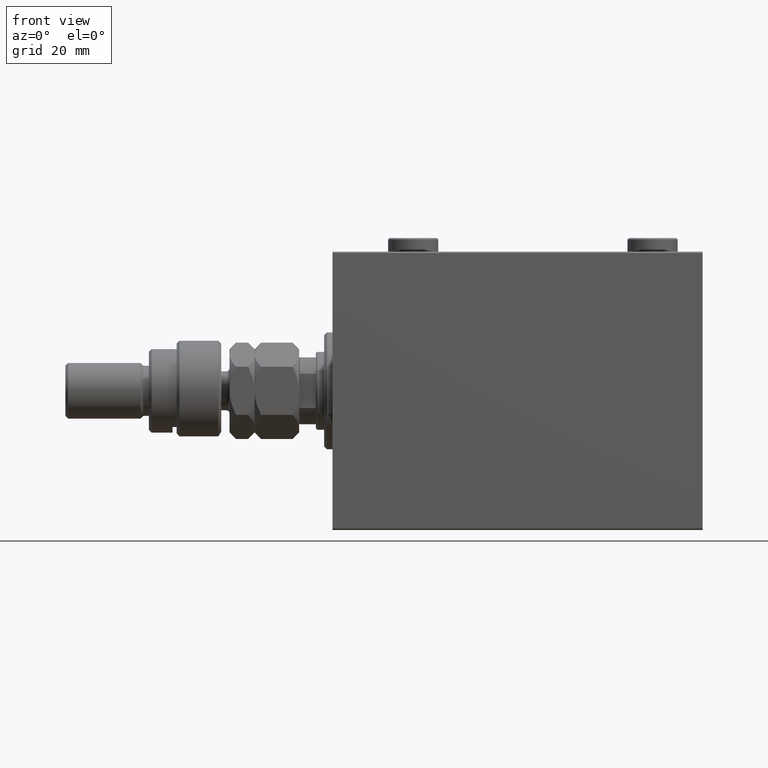
[diagram: clean part render]
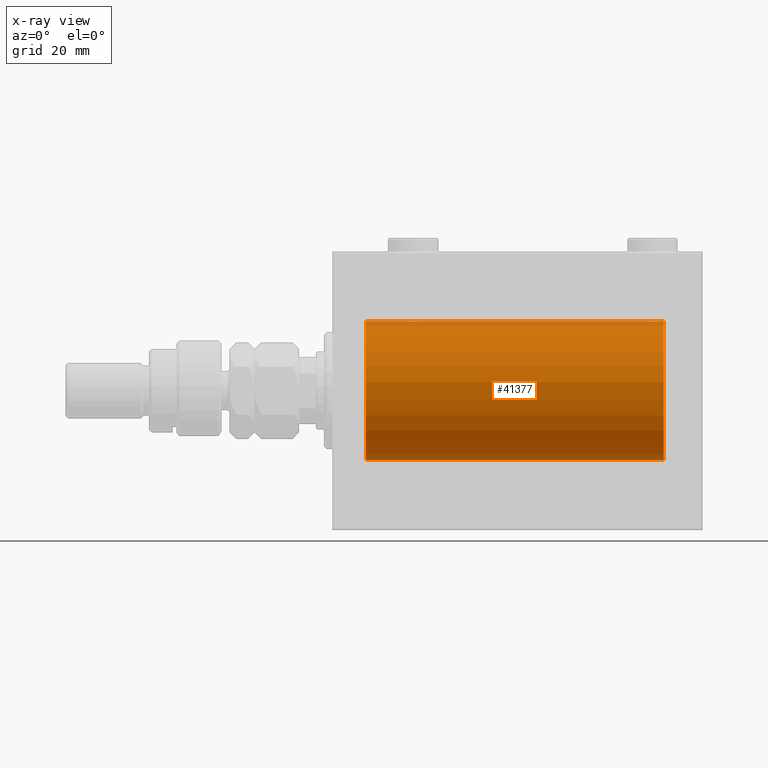
[diagram: x-ray — body ghosted, one internal face saturated and labeled with its STEP entity id]
A machine part, front view, then the same camera in x-ray: the body is ghosted and one INTERNAL B-rep face — a face not visible from any outside direction — is saturated and labeled: STEP entity #41377.
In plain terms, the highlighted cylindrical surface (partial cylindrical patch) has radius 25 mm, axis along (-1, -0, -0).
Its self-contained STEP definition (entity closure, byte-faithful):
#267 = EDGE_CURVE ( 'NONE', #23548, #13593, #1862, .T. ) ;
#268 = ORIENTED_EDGE ( 'NONE', *, *, #24972, .F. ) ;
#772 = CARTESIAN_POINT ( 'NONE',  ( 27.89276154161590426, -2.247417070759891278, -24.89885693081946272 ) ) ;
#1101 = ORIENTED_EDGE ( 'NONE', *, *, #267, .F. ) ;
#1598 = CARTESIAN_POINT ( 'NONE',  ( 112.6278403059139350, -0.8058335233485532934, 24.98746277938383287 ) ) ;
#1758 = AXIS2_PLACEMENT_3D ( 'NONE', #23993, #20828, #43212 ) ;
#1839 = CARTESIAN_POINT ( 'NONE',  ( 116.5225677434019218, -1.989585286700258138, 24.92087098724766747 ) ) ;
#1853 = CARTESIAN_POINT ( 'NONE',  ( 115.1670649517806169, -2.499872792855092563, -24.87469871246082320 ) ) ;
#1862 = LINE ( 'NONE', #2335, #41734 ) ;
#2069 = CARTESIAN_POINT ( 'NONE',  ( 117.1682764149395695, -1.255214705003179221, 24.96884293994577675 ) ) ;
#2335 = CARTESIAN_POINT ( 'NONE',  ( 119.0000000000000000, 0.000000000000000000, 25.00000000000000000 ) ) ;
#2677 = VECTOR ( 'NONE', #23693, 1000.000000000000000 ) ;
#3531 = CARTESIAN_POINT ( 'NONE',  ( 113.3487886644089286, -1.884161199660627339, -24.92916496727982789 ) ) ;
#4591 = CARTESIAN_POINT ( 'NONE',  ( 27.47463817756919369, -1.987446652080264720, 24.92104239223420592 ) ) ;
#4778 = CARTESIAN_POINT ( 'NONE',  ( 114.1921165759419523, -2.371528299825759856, 24.88734287464370709 ) ) ;
#4834 = CARTESIAN_POINT ( 'NONE',  ( 26.50000000000000355, -1.940558383798427991E-23, 25.00000000000000000 ) ) ;
#4863 = ORIENTED_EDGE ( 'NONE', *, *, #32525, .T. ) ;
#5013 = CARTESIAN_POINT ( 'NONE',  ( 113.1158761721352732, -1.651251241585110163, 24.94567559498348430 ) ) ;
#5067 = CARTESIAN_POINT ( 'NONE',  ( 31.49999999999998579, -0.3305063766663721148, 25.00000000000000000 ) ) ;
#5503 = CARTESIAN_POINT ( 'NONE',  ( 115.6490439016909590, -2.419770561643918683, -24.88263927071750814 ) ) ;
#5729 = CARTESIAN_POINT ( 'NONE',  ( 117.5000000000000284, -0.3305063766663758895, 25.00000000000000355 ) ) ;
#5743 = CARTESIAN_POINT ( 'NONE',  ( 114.1956433908369775, -2.372734907014183214, -24.88722742718433523 ) ) ;
#6026 = VERTEX_POINT ( 'NONE', #48058 ) ;
#6333 = B_SPLINE_CURVE_WITH_KNOTS ( 'NONE', 3,
 ( #9020, #27298, #12470, #19286, #8790, #26584, #42378, #16351, #38487, #15403, #38248, #30220, #34359, #16111, #12222, #41431, #19523, #34837, #30459, #45091, #15879, #772, #42140, #19994, #11748, #34126, #34597, #8074, #26815, #45335, #46061, #15642 ),
 .UNSPECIFIED., .F., .F.,
 ( 4, 2, 2, 2, 2, 2, 2, 2, 2, 2, 2, 2, 2, 2, 2, 4 ),
 ( 0.007821024441662299820, 0.008309723826317909692, 0.008798423210973517830, 0.009287122595629124233, 0.009775821980284728902, 0.01026452136494033357, 0.01075322074959593997, 0.01124192013425154464, 0.01173061951890715104, 0.01221931890356275571, 0.01270801828821836038, 0.01319671767287396852, 0.01368541705752957319, 0.01417411644218517959, 0.01466281582684078426, 0.01564021459615199533 ),
 .UNSPECIFIED. ) ;
#6695 = CARTESIAN_POINT ( 'NONE',  ( 117.5000000000000142, 2.971051067387116602E-15, 25.00000000000000000 ) ) ;
#7073 = ORIENTED_EDGE ( 'NONE', *, *, #26662, .T. ) ;
#7428 = CARTESIAN_POINT ( 'NONE',  ( 112.5665064476025350, -0.6588655613946003964, -24.99312727339970053 ) ) ;
#7546 = DIRECTION ( 'NONE',  ( -1.000000000000000000, -0.000000000000000000, -0.000000000000000000 ) ) ;
#8007 = CARTESIAN_POINT ( 'NONE',  ( 30.52256774340189693, -1.989585286700245037, 24.92087098724766747 ) ) ;
#8074 = CARTESIAN_POINT ( 'NONE',  ( 26.83172358506042698, -1.255214705003176112, -24.96884293994577320 ) ) ;
#8240 = CARTESIAN_POINT ( 'NONE',  ( 27.11587617213528745, -1.651251241585102836, 24.94567559498349141 ) ) ;
#8485 = CARTESIAN_POINT ( 'NONE',  ( 28.35095609830903740, -2.419770561643910689, 24.88263927071751169 ) ) ;
#8670 = CARTESIAN_POINT ( 'NONE',  ( 115.6456066614863403, -2.420689345803769044, 24.88254961038873958 ) ) ;
#8727 = CARTESIAN_POINT ( 'NONE',  ( 31.16827641493957302, -1.255214705003183440, 24.96884293994578385 ) ) ;
#8790 = CARTESIAN_POINT ( 'NONE',  ( 31.37215969408608274, -0.8058335233485438565, -24.98746277938383997 ) ) ;
#9020 = CARTESIAN_POINT ( 'NONE',  ( 31.50000000000000000, 3.061616978460191625E-15, -25.00000000000000000 ) ) ;
#9036 = CARTESIAN_POINT ( 'NONE',  ( 11.99999999999999645, 0.000000000000000000, 0.000000000000000000 ) ) ;
#9142 = CARTESIAN_POINT ( 'NONE',  ( 114.8329350482193831, -2.499872792855093451, 24.87469871246082320 ) ) ;
#9154 = CARTESIAN_POINT ( 'NONE',  ( 116.2538319542450580, -2.169003991399878650, -24.90589728951138326 ) ) ;
#9230 = EDGE_CURVE ( 'NONE', #43730, #46323, #26482, .T. ) ;
#9391 = CARTESIAN_POINT ( 'NONE',  ( 116.9853803371709517, -1.528152964861310803, 24.95362559291378091 ) ) ;
#9404 = CARTESIAN_POINT ( 'NONE',  ( 117.2476025101955628, -1.106703319666888508, -24.97594585958024282 ) ) ;
#9556 = CARTESIAN_POINT ( 'NONE',  ( 26.50000000000000355, -1.940558383798427991E-23, 25.00000000000000000 ) ) ;
#9645 = CARTESIAN_POINT ( 'NONE',  ( 117.5000000000000142, 3.061616978466108082E-15, -25.00000000000000000 ) ) ;
#10459 = DIRECTION ( 'NONE',  ( -1.000000000000000000, -0.000000000000000000, -0.000000000000000000 ) ) ;
#10747 = EDGE_CURVE ( 'NONE', #46323, #16269, #25098, .T. ) ;
#10883 = B_SPLINE_CURVE_WITH_KNOTS ( 'NONE', 3,
 ( #4834, #15814, #37940, #34296, #45025, #30634, #30874, #26518, #8240, #20178, #4591, #35016, #27472, #15335, #8485, #38663, #37700, #12158, #26987, #41836, #23335, #45744, #27233, #8007, #38424, #11919, #41599, #8727, #42077, #23576, #5067, #19932 ),
 .UNSPECIFIED., .F., .F.,
 ( 4, 2, 2, 2, 2, 2, 2, 2, 2, 2, 2, 2, 2, 2, 2, 4 ),
 ( 0.007821024441662275534, 0.008309723826317880202, 0.008798423210973486605, 0.009287122595629093008, 0.009775821980284697676, 0.01026452136494030234, 0.01075322074959590875, 0.01124192013425151515, 0.01173061951890711982, 0.01221931890356272449, 0.01270801828821833089, 0.01319671767287393729, 0.01368541705752954196, 0.01417411644218514663, 0.01466281582684075303, 0.01564021459615196410 ),
 .UNSPECIFIED. ) ;
#11415 = VERTEX_POINT ( 'NONE', #21517 ) ;
#11748 = CARTESIAN_POINT ( 'NONE',  ( 27.34878866440888601, -1.884161199660611796, -24.92916496727982434 ) ) ;
#11862 = ORIENTED_EDGE ( 'NONE', *, *, #9230, .T. ) ;
#11919 = CARTESIAN_POINT ( 'NONE',  ( 30.88185954148645962, -1.653834020452937814, 24.94550385189585029 ) ) ;
#12158 = CARTESIAN_POINT ( 'NONE',  ( 29.16323589638543723, -2.500125740978195843, 24.87467329022545570 ) ) ;
#12222 = CARTESIAN_POINT ( 'NONE',  ( 29.64904390169096970, -2.419770561643902695, -24.88263927071750459 ) ) ;
#12320 = VECTOR ( 'NONE', #43497, 1000.000000000000000 ) ;
#12470 = CARTESIAN_POINT ( 'NONE',  ( 31.48417840057656747, -0.3254210271412188993, -24.99840249400844883 ) ) ;
#12502 = EDGE_LOOP ( 'NONE', ( #21111, #19692, #11862, #37748, #36305, #7073, #27804, #268, #4863, #18102, #39089, #1101 ) ) ;
#12834 = CARTESIAN_POINT ( 'NONE',  ( 116.9874981583439393, -1.525407911884375300, -24.95379469572361586 ) ) ;
#12910 = CARTESIAN_POINT ( 'NONE',  ( 119.0000000000000000, 3.061616997868383043E-15, -25.00000000000000000 ) ) ;
#13060 = CARTESIAN_POINT ( 'NONE',  ( 116.6512113355911424, -1.884161199660627561, 24.92916496727982789 ) ) ;
#13073 = CARTESIAN_POINT ( 'NONE',  ( 117.1701129028092652, -1.252049606094348011, -24.96900299967627745 ) ) ;
#13540 = FACE_OUTER_BOUND ( 'NONE', #12502, .T. ) ;
#13593 = VERTEX_POINT ( 'NONE', #24775 ) ;
#13775 = DIRECTION ( 'NONE',  ( -1.000000000000000000, -0.000000000000000000, -0.000000000000000000 ) ) ;
#13831 = EDGE_CURVE ( 'NONE', #6026, #13593, #14151, .T. ) ;
#14151 = B_SPLINE_CURVE_WITH_KNOTS ( 'NONE', 3,
 ( #31064, #16708, #34958, #16471, #1598, #30821, #45692, #31533, #5013, #34714, #42489, #38131, #46176, #4778, #35432, #16943, #9142, #42028, #23996, #8670, #38853, #45940, #35201, #1839, #13060, #27888, #9391, #2069, #24240, #39095, #5729, #6695 ),
 .UNSPECIFIED., .F., .F.,
 ( 4, 2, 2, 2, 2, 2, 2, 2, 2, 2, 2, 2, 2, 2, 2, 4 ),
 ( 0.007821024441662341453, 0.008309723826317951326, 0.008798423210973559463, 0.009287122595629169336, 0.009775821980284777474, 0.01026452136494038735, 0.01075322074959599548, 0.01124192013425160536, 0.01173061951890721349, 0.01221931890356282337, 0.01270801828821843324, 0.01319671767287404138, 0.01368541705752964951, 0.01417411644218525939, 0.01466281582684086926, 0.01564021459615210288 ),
 .UNSPECIFIED. ) ;
#14521 = CARTESIAN_POINT ( 'NONE',  ( 113.1181404585135652, -1.653834020452947362, -24.94550385189584318 ) ) ;
#15335 = CARTESIAN_POINT ( 'NONE',  ( 28.19211657594193809, -2.371528299825749198, 24.88734287464370709 ) ) ;
#15403 = CARTESIAN_POINT ( 'NONE',  ( 30.65383336149337623, -1.881857718844709870, -24.92933960374833191 ) ) ;
#15642 = CARTESIAN_POINT ( 'NONE',  ( 26.50000000000000355, -1.828402720252098442E-15, -25.00000000000000000 ) ) ;
#15814 = CARTESIAN_POINT ( 'NONE',  ( 26.50000000000000711, -0.1631750940176214526, 25.00000000000000711 ) ) ;
#15879 = CARTESIAN_POINT ( 'NONE',  ( 28.19564339083697746, -2.372734907014167671, -24.88722742718433167 ) ) ;
#15970 = DIRECTION ( 'NONE',  ( -1.000000000000000000, -0.000000000000000000, -0.000000000000000000 ) ) ;
#15986 = CARTESIAN_POINT ( 'NONE',  ( 117.5000000000000142, 3.061616978466108082E-15, -25.00000000000000000 ) ) ;
#16111 = CARTESIAN_POINT ( 'NONE',  ( 29.80788342405805835, -2.371528299825740760, -24.88734287464371064 ) ) ;
#16269 = VERTEX_POINT ( 'NONE', #24572 ) ;
#16351 = CARTESIAN_POINT ( 'NONE',  ( 30.98749815834397481, -1.525407911884360868, -24.95379469572361941 ) ) ;
#16471 = CARTESIAN_POINT ( 'NONE',  ( 112.5798509077907141, -0.6480119923854288366, 24.99212088949390775 ) ) ;
#16708 = CARTESIAN_POINT ( 'NONE',  ( 112.4999999999999716, -0.1631750940176235343, 25.00000000000000355 ) ) ;
#16721 = CARTESIAN_POINT ( 'NONE',  ( 117.3721596940861076, -0.8058335233485500737, -24.98746277938383287 ) ) ;
#16943 = CARTESIAN_POINT ( 'NONE',  ( 114.6705231988572962, -2.483544361357281627, 24.87635491893501793 ) ) ;
#16954 = CARTESIAN_POINT ( 'NONE',  ( 113.7491597607594542, -2.170728182476731050, -24.90574631553725027 ) ) ;
#17664 = EDGE_CURVE ( 'NONE', #39818, #23548, #44509, .T. ) ;
#18102 = ORIENTED_EDGE ( 'NONE', *, *, #37332, .F. ) ;
#18641 = CARTESIAN_POINT ( 'NONE',  ( 112.5000000000000000, -1.076612927118312630E-14, -25.00000000000000000 ) ) ;
#18925 = VERTEX_POINT ( 'NONE', #9556 ) ;
#19214 = CARTESIAN_POINT ( 'NONE',  ( 26.50000000000000355, -1.828402720252098442E-15, -25.00000000000000000 ) ) ;
#19286 = CARTESIAN_POINT ( 'NONE',  ( 31.42014909220928942, -0.6480119923854186226, -24.99212088949390420 ) ) ;
#19523 = CARTESIAN_POINT ( 'NONE',  ( 29.16706495178059910, -2.499872792855075687, -24.87469871246081965 ) ) ;
#19582 = LINE ( 'NONE', #23460, #2677 ) ;
#19692 = ORIENTED_EDGE ( 'NONE', *, *, #40477, .T. ) ;
#19789 = VERTEX_POINT ( 'NONE', #45144 ) ;
#19932 = CARTESIAN_POINT ( 'NONE',  ( 31.50000000000000000, -3.359922002512890391E-15, 25.00000000000000000 ) ) ;
#19994 = CARTESIAN_POINT ( 'NONE',  ( 27.47743225659810307, -1.989585286700239708, -24.92087098724766392 ) ) ;
#20178 = CARTESIAN_POINT ( 'NONE',  ( 27.34616663850662377, -1.881857718844717642, 24.92933960374833902 ) ) ;
#20257 = DIRECTION ( 'NONE',  ( -1.000000000000000000, 0.000000000000000000, 0.000000000000000000 ) ) ;
#20372 = CARTESIAN_POINT ( 'NONE',  ( 115.3294768011427038, -2.483544361357281183, -24.87635491893501793 ) ) ;
#20828 = DIRECTION ( 'NONE',  ( -1.000000000000000000, 0.000000000000000000, 0.000000000000000000 ) ) ;
#21068 = CYLINDRICAL_SURFACE ( 'NONE', #41078, 25.00000000000000000 ) ;
#21111 = ORIENTED_EDGE ( 'NONE', *, *, #17664, .F. ) ;
#21517 = CARTESIAN_POINT ( 'NONE',  ( 31.50000000000000000, -3.359922002512890391E-15, 25.00000000000000000 ) ) ;
#22279 = CARTESIAN_POINT ( 'NONE',  ( 112.5000000000000000, -0.3305063766663817737, -25.00000000000000355 ) ) ;
#22814 = VERTEX_POINT ( 'NONE', #33127 ) ;
#22880 = VECTOR ( 'NONE', #15970, 1000.000000000000000 ) ;
#23335 = CARTESIAN_POINT ( 'NONE',  ( 29.80435660916301899, -2.372734907014175665, 24.88722742718433878 ) ) ;
#23460 = CARTESIAN_POINT ( 'NONE',  ( 119.0000000000000000, 3.061616997868383043E-15, -25.00000000000000000 ) ) ;
#23548 = VERTEX_POINT ( 'NONE', #42338 ) ;
#23576 = CARTESIAN_POINT ( 'NONE',  ( 31.43349355239747567, -0.6588655613945881839, 24.99312727339970053 ) ) ;
#23693 = DIRECTION ( 'NONE',  ( -1.000000000000000000, -0.000000000000000000, -0.000000000000000000 ) ) ;
#23993 = CARTESIAN_POINT ( 'NONE',  ( 119.0000000000000000, 0.000000000000000000, 0.000000000000000000 ) ) ;
#23996 = CARTESIAN_POINT ( 'NONE',  ( 115.3259657003946046, -2.484007091859774086, 24.87630842367763151 ) ) ;
#24008 = CARTESIAN_POINT ( 'NONE',  ( 116.1103679650886704, -2.245863995402912927, -24.89899750494197050 ) ) ;
#24240 = CARTESIAN_POINT ( 'NONE',  ( 117.2460637909406813, -1.109818057797417490, 24.97580694515541921 ) ) ;
#24254 = CARTESIAN_POINT ( 'NONE',  ( 114.6740342996053670, -2.484007091859773197, -24.87630842367763151 ) ) ;
#24572 = CARTESIAN_POINT ( 'NONE',  ( 31.50000000000000000, 3.061616978460191625E-15, -25.00000000000000000 ) ) ;
#24775 = CARTESIAN_POINT ( 'NONE',  ( 117.5000000000000142, 2.971051067387116602E-15, 25.00000000000000000 ) ) ;
#24838 = VECTOR ( 'NONE', #7546, 1000.000000000000000 ) ;
#24972 = EDGE_CURVE ( 'NONE', #18925, #22814, #31279, .T. ) ;
#25098 = LINE ( 'NONE', #39947, #24838 ) ;
#25697 = CARTESIAN_POINT ( 'NONE',  ( 112.8317235850604163, -1.255214705003194764, -24.96884293994577675 ) ) ;
#26482 = B_SPLINE_CURVE_WITH_KNOTS ( 'NONE', 3,
 ( #9645, #39584, #34973, #46190, #16721, #9404, #13073, #12834, #35214, #27660, #42504, #9154, #24008, #38868, #5503, #20372, #1853, #27899, #24254, #39109, #5743, #35444, #16954, #31785, #3531, #14521, #29336, #25697, #32996, #7428, #22279, #18641 ),
 .UNSPECIFIED., .F., .F.,
 ( 4, 2, 2, 2, 2, 2, 2, 2, 2, 2, 2, 2, 2, 2, 2, 4 ),
 ( 0.007821024441662320636, 0.008309723826317927040, 0.008798423210973533443, 0.009287122595629141580, 0.009775821980284747983, 0.01026452136494035439, 0.01075322074959596079, 0.01124192013425156719, 0.01173061951890717533, 0.01221931890356278000, 0.01270801828821838814, 0.01319671767287399454, 0.01368541705752960094, 0.01417411644218520735, 0.01466281582684081375, 0.01564021459615204390 ),
 .UNSPECIFIED. ) ;
#26518 = CARTESIAN_POINT ( 'NONE',  ( 27.01250184165601809, -1.525407911884367085, 24.95379469572361941 ) ) ;
#26584 = CARTESIAN_POINT ( 'NONE',  ( 31.24760251019551305, -1.106703319666880514, -24.97594585958023927 ) ) ;
#26662 = EDGE_CURVE ( 'NONE', #38220, #19789, #19582, .T. ) ;
#26815 = CARTESIAN_POINT ( 'NONE',  ( 26.75393620905933645, -1.109818057797413715, -24.97580694515542277 ) ) ;
#26987 = CARTESIAN_POINT ( 'NONE',  ( 29.32596570039460104, -2.484007091859765204, 24.87630842367763506 ) ) ;
#27060 = EDGE_CURVE ( 'NONE', #16269, #38220, #6333, .T. ) ;
#27233 = CARTESIAN_POINT ( 'NONE',  ( 30.25084023924055998, -2.170728182476720391, 24.90574631553725027 ) ) ;
#27298 = CARTESIAN_POINT ( 'NONE',  ( 31.49999999999999289, -0.1631750940176170117, -25.00000000000000711 ) ) ;
#27472 = CARTESIAN_POINT ( 'NONE',  ( 27.88963203491136156, -2.245863995402901381, 24.89899750494197050 ) ) ;
#27660 = CARTESIAN_POINT ( 'NONE',  ( 116.6538333614933691, -1.881857718844724081, -24.92933960374833546 ) ) ;
#27804 = ORIENTED_EDGE ( 'NONE', *, *, #33943, .T. ) ;
#27888 = CARTESIAN_POINT ( 'NONE',  ( 116.8818595414864916, -1.653834020452947362, 24.94550385189584318 ) ) ;
#27899 = CARTESIAN_POINT ( 'NONE',  ( 114.8367641036145557, -2.500125740978204725, -24.87467329022545570 ) ) ;
#28163 = CARTESIAN_POINT ( 'NONE',  ( 119.0000000000000000, 3.061616997868383043E-15, -25.00000000000000000 ) ) ;
#28224 = CARTESIAN_POINT ( 'NONE',  ( 119.0000000000000000, 0.000000000000000000, 25.00000000000000000 ) ) ;
#29336 = CARTESIAN_POINT ( 'NONE',  ( 113.0146196628290340, -1.528152964861324570, -24.95362559291378091 ) ) ;
#30095 = AXIS2_PLACEMENT_3D ( 'NONE', #9036, #20257, #31202 ) ;
#30220 = CARTESIAN_POINT ( 'NONE',  ( 30.25383195424503313, -2.169003991399864884, -24.90589728951138682 ) ) ;
#30459 = CARTESIAN_POINT ( 'NONE',  ( 28.67403429960539896, -2.484007091859758543, -24.87630842367763151 ) ) ;
#30634 = CARTESIAN_POINT ( 'NONE',  ( 26.75239748980449761, -1.106703319666885399, 24.97594585958023572 ) ) ;
#30821 = CARTESIAN_POINT ( 'NONE',  ( 112.7523974898045083, -1.106703319666891838, 24.97594585958023217 ) ) ;
#30874 = CARTESIAN_POINT ( 'NONE',  ( 26.82988709719076681, -1.252049606094339795, 24.96900299967627390 ) ) ;
#31064 = CARTESIAN_POINT ( 'NONE',  ( 112.5000000000000000, -1.940203396391078535E-23, 25.00000000000000000 ) ) ;
#31202 = DIRECTION ( 'NONE',  ( 0.000000000000000000, 0.000000000000000000, 1.000000000000000000 ) ) ;
#31279 = LINE ( 'NONE', #34219, #22880 ) ;
#31533 = CARTESIAN_POINT ( 'NONE',  ( 113.0125018416559755, -1.525407911884377965, 24.95379469572361941 ) ) ;
#31557 = DIRECTION ( 'NONE',  ( -1.000000000000000000, -0.000000000000000000, -0.000000000000000000 ) ) ;
#31651 = CIRCLE ( 'NONE', #30095, 25.00000000000000000 ) ;
#31785 = CARTESIAN_POINT ( 'NONE',  ( 113.4774322565981635, -1.989585286700257694, -24.92087098724766747 ) ) ;
#32525 = EDGE_CURVE ( 'NONE', #18925, #11415, #10883, .T. ) ;
#32781 = LINE ( 'NONE', #28163, #12320 ) ;
#32996 = CARTESIAN_POINT ( 'NONE',  ( 112.7539362090593187, -1.109818057797429036, -24.97580694515541921 ) ) ;
#33001 = CARTESIAN_POINT ( 'NONE',  ( 112.5000000000000000, -1.076612927118312630E-14, -25.00000000000000000 ) ) ;
#33127 = CARTESIAN_POINT ( 'NONE',  ( 11.99999999999999645, 0.000000000000000000, 25.00000000000000000 ) ) ;
#33943 = EDGE_CURVE ( 'NONE', #19789, #22814, #31651, .T. ) ;
#34126 = CARTESIAN_POINT ( 'NONE',  ( 27.11814045851354393, -1.653834020452933151, -24.94550385189584674 ) ) ;
#34219 = CARTESIAN_POINT ( 'NONE',  ( 119.0000000000000000, 0.000000000000000000, 25.00000000000000000 ) ) ;
#34296 = CARTESIAN_POINT ( 'NONE',  ( 26.57985090779070347, -0.6480119923854229524, 24.99212088949390420 ) ) ;
#34359 = CARTESIAN_POINT ( 'NONE',  ( 30.11036796508864555, -2.245863995402895164, -24.89899750494197406 ) ) ;
#34597 = CARTESIAN_POINT ( 'NONE',  ( 27.01461966282905891, -1.528152964861306584, -24.95362559291379156 ) ) ;
#34714 = CARTESIAN_POINT ( 'NONE',  ( 113.3461666385066309, -1.881857718844725857, 24.92933960374833546 ) ) ;
#34837 = CARTESIAN_POINT ( 'NONE',  ( 28.83676410361456632, -2.500125740978188738, -24.87467329022545215 ) ) ;
#34958 = CARTESIAN_POINT ( 'NONE',  ( 112.5158215994234467, -0.3254210271412264488, 24.99840249400844883 ) ) ;
#34973 = CARTESIAN_POINT ( 'NONE',  ( 117.4841784005765959, -0.3254210271412224520, -24.99840249400844883 ) ) ;
#35016 = CARTESIAN_POINT ( 'NONE',  ( 27.74616804575498108, -2.169003991399871989, 24.90589728951138326 ) ) ;
#35201 = CARTESIAN_POINT ( 'NONE',  ( 116.2508402392405458, -2.170728182476731938, 24.90574631553725027 ) ) ;
#35214 = CARTESIAN_POINT ( 'NONE',  ( 116.8841238278647126, -1.651251241585108387, -24.94567559498348430 ) ) ;
#35424 = DIRECTION ( 'NONE',  ( 0.000000000000000000, 0.000000000000000000, 1.000000000000000000 ) ) ;
#35432 = CARTESIAN_POINT ( 'NONE',  ( 114.3509560983090125, -2.419770561643919127, 24.88263927071750814 ) ) ;
#35444 = CARTESIAN_POINT ( 'NONE',  ( 113.8927615416159256, -2.247417070759905933, -24.89885693081946272 ) ) ;
#36305 = ORIENTED_EDGE ( 'NONE', *, *, #27060, .T. ) ;
#37332 = EDGE_CURVE ( 'NONE', #6026, #11415, #46742, .T. ) ;
#37700 = CARTESIAN_POINT ( 'NONE',  ( 28.83293504821940090, -2.499872792855082793, 24.87469871246082320 ) ) ;
#37748 = ORIENTED_EDGE ( 'NONE', *, *, #10747, .T. ) ;
#37940 = CARTESIAN_POINT ( 'NONE',  ( 26.51582159942343608, -0.3254210271412225630, 24.99840249400844883 ) ) ;
#38131 = CARTESIAN_POINT ( 'NONE',  ( 113.7461680457549846, -2.169003991399879983, 24.90589728951138326 ) ) ;
#38220 = VERTEX_POINT ( 'NONE', #19214 ) ;
#38248 = CARTESIAN_POINT ( 'NONE',  ( 30.52536182243080631, -1.987446652080256504, -24.92104239223419881 ) ) ;
#38424 = CARTESIAN_POINT ( 'NONE',  ( 30.65121133559112820, -1.884161199660616459, 24.92916496727982434 ) ) ;
#38487 = CARTESIAN_POINT ( 'NONE',  ( 30.88412382786471611, -1.651251241585095508, -24.94567559498348785 ) ) ;
#38663 = CARTESIAN_POINT ( 'NONE',  ( 28.67052319885732103, -2.483544361357271857, 24.87635491893501438 ) ) ;
#38853 = CARTESIAN_POINT ( 'NONE',  ( 115.8043566091630083, -2.372734907014184991, 24.88722742718433523 ) ) ;
#38868 = CARTESIAN_POINT ( 'NONE',  ( 115.8078834240580619, -2.371528299825759412, -24.88734287464370709 ) ) ;
#39086 = CARTESIAN_POINT ( 'NONE',  ( 119.0000000000000000, 0.000000000000000000, 0.000000000000000000 ) ) ;
#39089 = ORIENTED_EDGE ( 'NONE', *, *, #13831, .T. ) ;
#39095 = CARTESIAN_POINT ( 'NONE',  ( 117.4334935523974934, -0.6588655613945869627, 24.99312727339970053 ) ) ;
#39109 = CARTESIAN_POINT ( 'NONE',  ( 114.3543933385136881, -2.420689345803766823, -24.88254961038873958 ) ) ;
#39584 = CARTESIAN_POINT ( 'NONE',  ( 117.5000000000000142, -0.1631750940176189824, -25.00000000000000355 ) ) ;
#39818 = VERTEX_POINT ( 'NONE', #12910 ) ;
#39947 = CARTESIAN_POINT ( 'NONE',  ( 119.0000000000000000, 3.061616997868383043E-15, -25.00000000000000000 ) ) ;
#40477 = EDGE_CURVE ( 'NONE', #39818, #43730, #32781, .T. ) ;
#41078 = AXIS2_PLACEMENT_3D ( 'NONE', #39086, #13775, #35424 ) ;
#41377 = ADVANCED_FACE ( 'NONE', ( #13540 ), #21068, .F. ) ;
#41431 = CARTESIAN_POINT ( 'NONE',  ( 29.32947680114268962, -2.483544361357264751, -24.87635491893502149 ) ) ;
#41599 = CARTESIAN_POINT ( 'NONE',  ( 30.98538033717094464, -1.528152964861312801, 24.95362559291378801 ) ) ;
#41734 = VECTOR ( 'NONE', #31557, 1000.000000000000000 ) ;
#41836 = CARTESIAN_POINT ( 'NONE',  ( 29.64560666148631896, -2.420689345803761050, 24.88254961038873958 ) ) ;
#42028 = CARTESIAN_POINT ( 'NONE',  ( 115.1632358963854585, -2.500125740978206057, 24.87467329022545570 ) ) ;
#42077 = CARTESIAN_POINT ( 'NONE',  ( 31.24606379094067066, -1.109818057797417046, 24.97580694515541921 ) ) ;
#42140 = CARTESIAN_POINT ( 'NONE',  ( 27.74915976075944712, -2.170728182476714174, -24.90574631553725027 ) ) ;
#42338 = CARTESIAN_POINT ( 'NONE',  ( 119.0000000000000000, 0.000000000000000000, 25.00000000000000000 ) ) ;
#42378 = CARTESIAN_POINT ( 'NONE',  ( 31.17011290280924740, -1.252049606094333578, -24.96900299967627390 ) ) ;
#42489 = CARTESIAN_POINT ( 'NONE',  ( 113.4746381775692043, -1.987446652080271159, 24.92104239223420592 ) ) ;
#42504 = CARTESIAN_POINT ( 'NONE',  ( 116.5253618224307957, -1.987446652080270271, -24.92104239223420592 ) ) ;
#43212 = DIRECTION ( 'NONE',  ( 0.000000000000000000, 0.000000000000000000, 1.000000000000000000 ) ) ;
#43497 = DIRECTION ( 'NONE',  ( -1.000000000000000000, -0.000000000000000000, -0.000000000000000000 ) ) ;
#43730 = VERTEX_POINT ( 'NONE', #15986 ) ;
#44509 = CIRCLE ( 'NONE', #1758, 25.00000000000000000 ) ;
#44985 = VECTOR ( 'NONE', #10459, 1000.000000000000000 ) ;
#45025 = CARTESIAN_POINT ( 'NONE',  ( 26.62784030591392792, -0.8058335233485480753, 24.98746277938383287 ) ) ;
#45091 = CARTESIAN_POINT ( 'NONE',  ( 28.35439333851368815, -2.420689345803754833, -24.88254961038873958 ) ) ;
#45144 = CARTESIAN_POINT ( 'NONE',  ( 11.99999999999999645, 3.061616997868383043E-15, -25.00000000000000000 ) ) ;
#45335 = CARTESIAN_POINT ( 'NONE',  ( 26.56650644760253499, -0.6588655613945862966, -24.99312727339971119 ) ) ;
#45692 = CARTESIAN_POINT ( 'NONE',  ( 112.8298870971907917, -1.252049606094350453, 24.96900299967627390 ) ) ;
#45744 = CARTESIAN_POINT ( 'NONE',  ( 30.10723845838410284, -2.247417070759897495, 24.89885693081946272 ) ) ;
#45940 = CARTESIAN_POINT ( 'NONE',  ( 116.1072384583841171, -2.247417070759907709, 24.89885693081946272 ) ) ;
#46061 = CARTESIAN_POINT ( 'NONE',  ( 26.50000000000001066, -0.3305063766663757785, -25.00000000000000355 ) ) ;
#46176 = CARTESIAN_POINT ( 'NONE',  ( 113.8896320349113864, -2.245863995402913371, 24.89899750494197050 ) ) ;
#46190 = CARTESIAN_POINT ( 'NONE',  ( 117.4201490922092859, -0.6480119923854245068, -24.99212088949390775 ) ) ;
#46323 = VERTEX_POINT ( 'NONE', #33001 ) ;
#46742 = LINE ( 'NONE', #28224, #44985 ) ;
#48058 = CARTESIAN_POINT ( 'NONE',  ( 112.5000000000000000, -1.940203396391078535E-23, 25.00000000000000000 ) ) ;